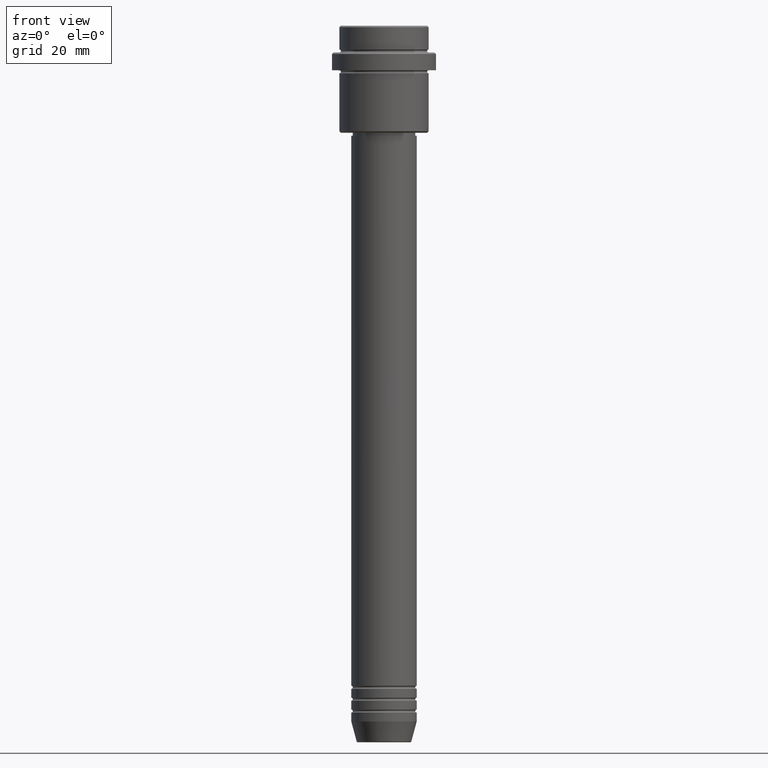
[diagram: clean part render]
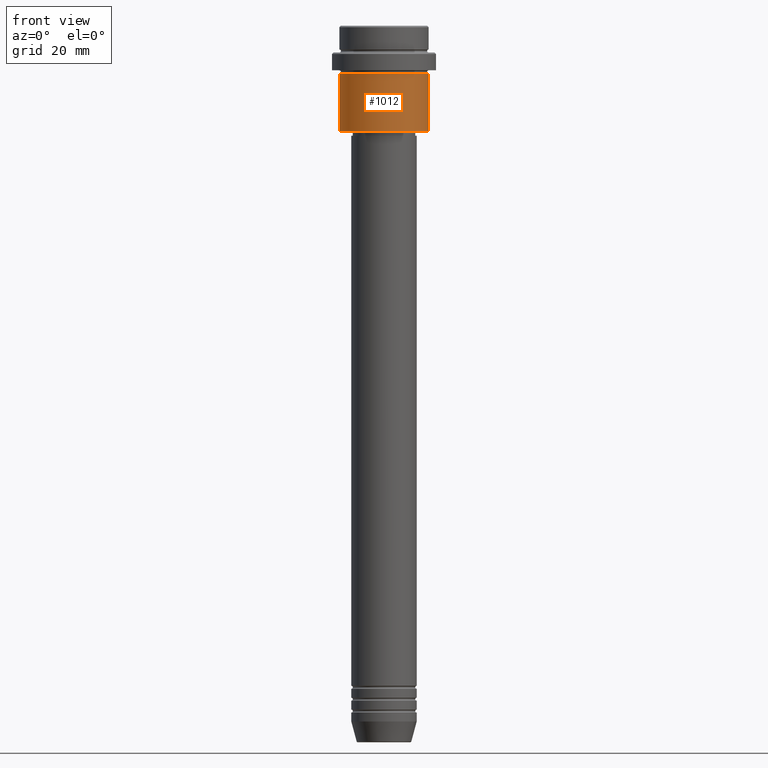
[diagram: same view with one face highlighted and labeled with its STEP entity id]
A machine part, front view. The second image highlights one B-rep face of the part: STEP entity #1012.
In plain terms, the highlighted cylindrical surface (partial cylindrical patch) has radius 15 mm, axis along (-0, -0, 1).
Its self-contained STEP definition (entity closure, byte-faithful):
#7 = VERTEX_POINT ( 'NONE', #1213 ) ;
#39 = ORIENTED_EDGE ( 'NONE', *, *, #198, .F. ) ;
#43 = DIRECTION ( 'NONE',  ( -0.000000000000000000, -0.000000000000000000, 1.000000000000000000 ) ) ;
#48 = DIRECTION ( 'NONE',  ( 1.000000000000000000, 0.000000000000000000, 0.000000000000000000 ) ) ;
#49 = DIRECTION ( 'NONE',  ( -1.000000000000000000, 0.000000000000000000, 0.000000000000000000 ) ) ;
#71 = DIRECTION ( 'NONE',  ( -0.000000000000000000, -0.000000000000000000, 1.000000000000000000 ) ) ;
#103 = AXIS2_PLACEMENT_3D ( 'NONE', #572, #784, #589 ) ;
#149 = DIRECTION ( 'NONE',  ( -0.000000000000000000, -0.000000000000000000, 1.000000000000000000 ) ) ;
#198 = EDGE_CURVE ( 'NONE', #782, #526, #1266, .T. ) ;
#228 = VERTEX_POINT ( 'NONE', #728 ) ;
#245 = CARTESIAN_POINT ( 'NONE',  ( -15.00000000000000355, 1.836970198721029983E-15, -16.00000000000000000 ) ) ;
#280 = VECTOR ( 'NONE', #71, 1000.000000000000000 ) ;
#345 = LINE ( 'NONE', #790, #1183 ) ;
#375 = CIRCLE ( 'NONE', #1182, 15.00000000000000000 ) ;
#513 = CIRCLE ( 'NONE', #103, 15.00000000000000178 ) ;
#526 = VERTEX_POINT ( 'NONE', #245 ) ;
#541 = EDGE_CURVE ( 'NONE', #782, #7, #375, .T. ) ;
#572 = CARTESIAN_POINT ( 'NONE',  ( 0.000000000000000000, 0.000000000000000000, -16.00000000000000000 ) ) ;
#589 = DIRECTION ( 'NONE',  ( 1.000000000000000000, 0.000000000000000000, 0.000000000000000000 ) ) ;
#610 = CARTESIAN_POINT ( 'NONE',  ( -15.00000000000000000, 1.836970198721029589E-15, 0.000000000000000000 ) ) ;
#623 = AXIS2_PLACEMENT_3D ( 'NONE', #925, #149, #48 ) ;
#624 = EDGE_LOOP ( 'NONE', ( #39, #806, #792, #854 ) ) ;
#691 = FACE_OUTER_BOUND ( 'NONE', #624, .T. ) ;
#728 = CARTESIAN_POINT ( 'NONE',  ( 15.00000000000000178, 0.000000000000000000, -16.00000000000000000 ) ) ;
#782 = VERTEX_POINT ( 'NONE', #1087 ) ;
#784 = DIRECTION ( 'NONE',  ( -0.000000000000000000, -0.000000000000000000, 1.000000000000000000 ) ) ;
#790 = CARTESIAN_POINT ( 'NONE',  ( 15.00000000000000000, 0.000000000000000000, 0.000000000000000000 ) ) ;
#792 = ORIENTED_EDGE ( 'NONE', *, *, #1397, .T. ) ;
#806 = ORIENTED_EDGE ( 'NONE', *, *, #541, .T. ) ;
#854 = ORIENTED_EDGE ( 'NONE', *, *, #1351, .F. ) ;
#925 = CARTESIAN_POINT ( 'NONE',  ( 0.000000000000000000, 0.000000000000000000, 0.000000000000000000 ) ) ;
#1012 = ADVANCED_FACE ( 'NONE', ( #691 ), #1138, .T. ) ;
#1087 = CARTESIAN_POINT ( 'NONE',  ( -15.00000000000000000, 1.836970198721029589E-15, -35.49999999999993605 ) ) ;
#1138 = CYLINDRICAL_SURFACE ( 'NONE', #623, 15.00000000000000000 ) ;
#1182 = AXIS2_PLACEMENT_3D ( 'NONE', #1349, #43, #49 ) ;
#1183 = VECTOR ( 'NONE', #1223, 1000.000000000000000 ) ;
#1213 = CARTESIAN_POINT ( 'NONE',  ( 15.00000000000000000, 0.000000000000000000, -35.49999999999993605 ) ) ;
#1223 = DIRECTION ( 'NONE',  ( -0.000000000000000000, -0.000000000000000000, 1.000000000000000000 ) ) ;
#1266 = LINE ( 'NONE', #610, #280 ) ;
#1349 = CARTESIAN_POINT ( 'NONE',  ( 0.000000000000000000, 0.000000000000000000, -35.49999999999993605 ) ) ;
#1351 = EDGE_CURVE ( 'NONE', #526, #228, #513, .T. ) ;
#1397 = EDGE_CURVE ( 'NONE', #7, #228, #345, .T. ) ;